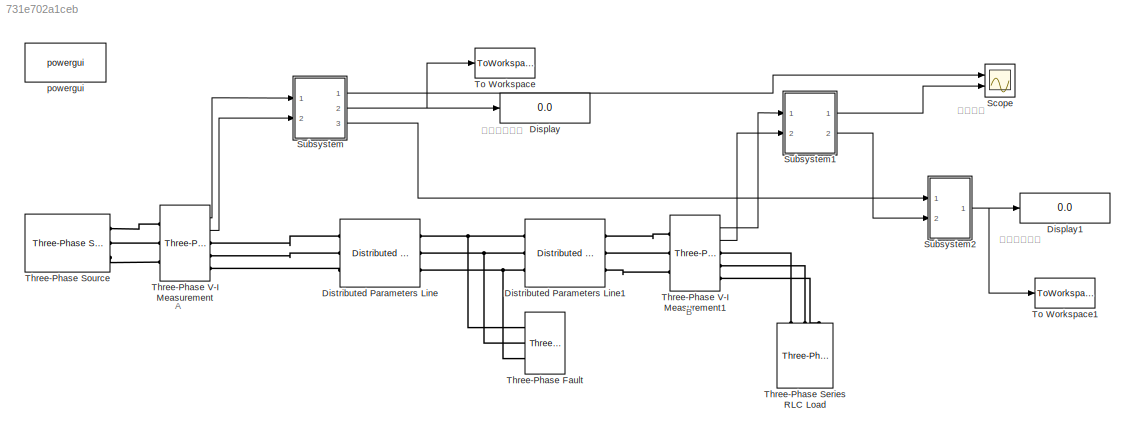
MODEL slx_731e702a1ceb
KIND model
CONFIG AbsTol = auto
CONFIG EnableMultiTasking = off
CONFIG FixedStep = auto
CONFIG MaxStep = auto
CONFIG MinStep = auto
CONFIG PreLoadFcn = l1=50;
CONFIG RelTol = 1e-3
CONFIG SampleTimeConstraint = Unconstrained
CONFIG Solver = ode23tb
CONFIG SolverName = ode23tb
CONFIG StartTime = 0.0
CONFIG StopTime = 0.015
BLOCK [Display] Display
  Decimation = 1
  Ports = [1]
BLOCK [Display] Display1
  Decimation = 1
  Ports = [1]
BLOCK [Reference] Distributed Parameters Line  REF=powerlib/Elements/Distributed Parameters Line
  Ports = [0, 0, 0, 0, 0, 3, 3]
  SourceBlock = powerlib/Elements/Distributed Parameters Line
  SourceProductBaseCode = PS
  SourceProductName = Simscape Power Systems
  SourceType = Distributed Parameters Line
BLOCK [Reference] Distributed Parameters Line1  REF=powerlib/Elements/Distributed Parameters Line
  Ports = [0, 0, 0, 0, 0, 3, 3]
  SourceBlock = powerlib/Elements/Distributed Parameters Line
  SourceProductBaseCode = PS
  SourceProductName = Simscape Power Systems
  SourceType = Distributed Parameters Line
BLOCK [Scope] Scope
  Floating = off
  NumInputPorts = 2
  Ports = [2]
  ScopeSpecificationString = Simulink.scopes.TimeScopeBlockCfg('CurrentConfiguration', extmgr.ConfigurationSet(extmgr.Configuration('Core','General UI',true),extmgr.Configuration('Core','Source UI',true),extmgr.Configuration('Sources','WiredSimulink',true),extmgr.Configuration('Visuals','Time Domain',true,'SerializedDisplays',{struct('MinYLimReal','-20383.08253','MaxYLimReal','103409.95199','YLabelReal','','MinYLimMag','   0....<+1407ch>
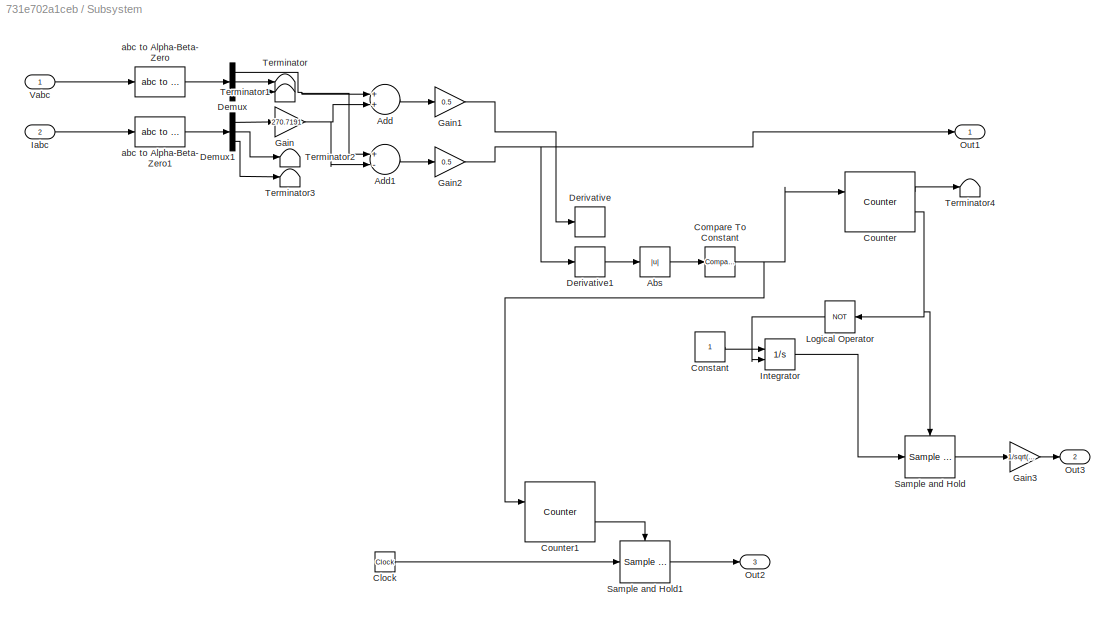
BLOCK [SubSystem] Subsystem
  Ports = [2, 3]
  RequestExecContextInheritance = off
BLOCK [Abs] Subsystem/Abs
  SaturateOnIntegerOverflow = off
BLOCK [Sum] Subsystem/Add
  InputSameDT = off
  OutDataTypeStr = Inherit: Inherit via internal rule
  Ports = [2, 1]
  SaturateOnIntegerOverflow = off
BLOCK [Sum] Subsystem/Add1
  InputSameDT = off
  Inputs = +-
  OutDataTypeStr = Inherit: Inherit via internal rule
  Ports = [2, 1]
  SaturateOnIntegerOverflow = off
BLOCK [Clock] Subsystem/Clock
BLOCK [Reference] Subsystem/Compare To Constant  REF=simulink/Logic and Bit
Operations/Compare
To Constant
  Ports = [1, 1]
  SourceBlock = simulink/Logic and Bit\nOperations/Compare\nTo Constant
  SourceProductBaseCode = SL
  SourceProductName = Simulink
  SourceType = Compare To Constant
BLOCK [Constant] Subsystem/Constant
BLOCK [Reference] Subsystem/Counter  REF=dspswit3/Counter
  Ports = [2, 2]
  SourceBlock = dspswit3/Counter
  SourceProductBaseCode = DS
  SourceProductName = DSP System Toolbox
  SourceType = Counter
BLOCK [Reference] Subsystem/Counter1  REF=dspswit3/Counter
  Ports = [2, 2]
  SourceBlock = dspswit3/Counter
  SourceProductBaseCode = DS
  SourceProductName = DSP System Toolbox
  SourceType = Counter
BLOCK [Demux] Subsystem/Demux
  DisplayOption = bar
  Outputs = 3
  Ports = [1, 3]
BLOCK [Demux] Subsystem/Demux1
  DisplayOption = bar
  Outputs = 3
  Ports = [1, 3]
BLOCK [Derivative] Subsystem/Derivative
BLOCK [Derivative] Subsystem/Derivative1
BLOCK [Gain] Subsystem/Gain
  Gain = 270.7191
  OutDataTypeStr = Inherit: Inherit via internal rule
  ParamDataTypeStr = Inherit: Inherit via internal rule
  SaturateOnIntegerOverflow = off
BLOCK [Gain] Subsystem/Gain1
  Gain = 0.5
  OutDataTypeStr = Inherit: Inherit via internal rule
  ParamDataTypeStr = Inherit: Inherit via internal rule
  SaturateOnIntegerOverflow = off
BLOCK [Gain] Subsystem/Gain2
  Gain = 0.5
  OutDataTypeStr = Inherit: Inherit via internal rule
  ParamDataTypeStr = Inherit: Inherit via internal rule
  SaturateOnIntegerOverflow = off
BLOCK [Gain] Subsystem/Gain3
  Gain = 1/sqrt(0.9337e-3*12.74e-9)/2
  OutDataTypeStr = Inherit: Inherit via internal rule
  ParamDataTypeStr = Inherit: Inherit via internal rule
  SaturateOnIntegerOverflow = off
BLOCK [Inport] Subsystem/Iabc
  IconDisplay = Port number
  Port = 2
BLOCK [Integrator] Subsystem/Integrator
  ExternalReset = level hold
  Ports = [2, 1]
BLOCK [Logic] Subsystem/Logical Operator
  AllPortsSameDT = off
  Operator = NOT
  OutDataTypeStr = boolean
  Ports = [1, 1]
BLOCK [Outport] Subsystem/Out1
  IconDisplay = Port number
BLOCK [Outport] Subsystem/Out2
  IconDisplay = Port number
  Port = 3
BLOCK [Outport] Subsystem/Out3
  IconDisplay = Port number
  Port = 2
BLOCK [Reference] Subsystem/Sample and Hold  REF=dspsigops/Sample
and Hold
  Ports = [1, 1, 0, 1]
  SourceBlock = dspsigops/Sample\nand Hold
  SourceProductBaseCode = DS
  SourceProductName = DSP System Toolbox
  SourceType = Sample and Hold
BLOCK [Reference] Subsystem/Sample and Hold1  REF=dspsigops/Sample
and Hold
  Ports = [1, 1, 0, 1]
  SourceBlock = dspsigops/Sample\nand Hold
  SourceProductBaseCode = DS
  SourceProductName = DSP System Toolbox
  SourceType = Sample and Hold
BLOCK [Terminator] Subsystem/Terminator
BLOCK [Terminator] Subsystem/Terminator1
BLOCK [Terminator] Subsystem/Terminator2
BLOCK [Terminator] Subsystem/Terminator3
BLOCK [Terminator] Subsystem/Terminator4
BLOCK [Inport] Subsystem/Vabc
  IconDisplay = Port number
BLOCK [Reference] Subsystem/abc to Alpha-Beta-Zero  REF=powerlib_meascontrol/Transformations/abc to
Alpha-Beta-Zero
  Ports = [1, 1]
  SourceBlock = powerlib_meascontrol/Transformations/abc to\nAlpha-Beta-Zero
  SourceProductBaseCode = PS
  SourceProductName = Simscape Power Systems
  SourceType = abc to Alpha-Beta-Zero Transformation
BLOCK [Reference] Subsystem/abc to Alpha-Beta-Zero1  REF=powerlib_meascontrol/Transformations/abc to
Alpha-Beta-Zero
  Ports = [1, 1]
  SourceBlock = powerlib_meascontrol/Transformations/abc to\nAlpha-Beta-Zero
  SourceProductBaseCode = PS
  SourceProductName = Simscape Power Systems
  SourceType = abc to Alpha-Beta-Zero Transformation
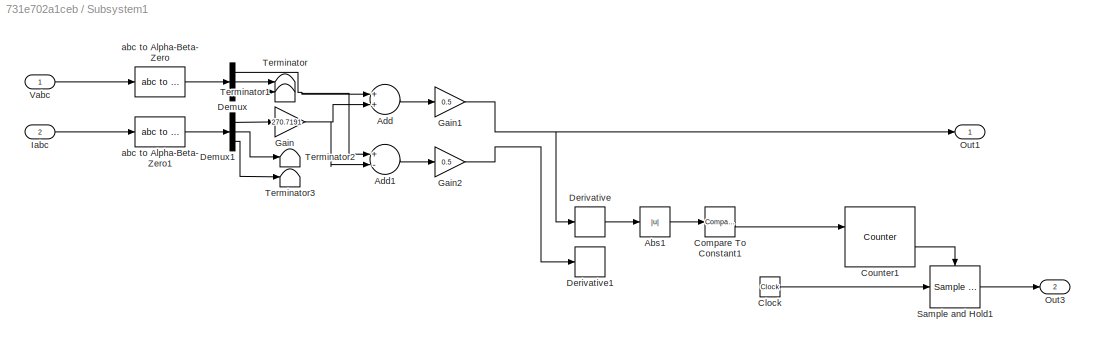
BLOCK [SubSystem] Subsystem1
  Ports = [2, 2]
  RequestExecContextInheritance = off
BLOCK [Abs] Subsystem1/Abs1
  SaturateOnIntegerOverflow = off
BLOCK [Sum] Subsystem1/Add
  InputSameDT = off
  OutDataTypeStr = Inherit: Inherit via internal rule
  Ports = [2, 1]
  SaturateOnIntegerOverflow = off
BLOCK [Sum] Subsystem1/Add1
  InputSameDT = off
  Inputs = +-
  OutDataTypeStr = Inherit: Inherit via internal rule
  Ports = [2, 1]
  SaturateOnIntegerOverflow = off
BLOCK [Clock] Subsystem1/Clock
BLOCK [Reference] Subsystem1/Compare To Constant1  REF=simulink/Logic and Bit
Operations/Compare
To Constant
  Ports = [1, 1]
  SourceBlock = simulink/Logic and Bit\nOperations/Compare\nTo Constant
  SourceProductBaseCode = SL
  SourceProductName = Simulink
  SourceType = Compare To Constant
BLOCK [Reference] Subsystem1/Counter1  REF=dspswit3/Counter
  Ports = [2, 2]
  SourceBlock = dspswit3/Counter
  SourceProductBaseCode = DS
  SourceProductName = DSP System Toolbox
  SourceType = Counter
BLOCK [Demux] Subsystem1/Demux
  DisplayOption = bar
  Outputs = 3
  Ports = [1, 3]
BLOCK [Demux] Subsystem1/Demux1
  DisplayOption = bar
  Outputs = 3
  Ports = [1, 3]
BLOCK [Derivative] Subsystem1/Derivative
BLOCK [Derivative] Subsystem1/Derivative1
BLOCK [Gain] Subsystem1/Gain
  Gain = 270.7191
  OutDataTypeStr = Inherit: Inherit via internal rule
  ParamDataTypeStr = Inherit: Inherit via internal rule
  SaturateOnIntegerOverflow = off
BLOCK [Gain] Subsystem1/Gain1
  Gain = 0.5
  OutDataTypeStr = Inherit: Inherit via internal rule
  ParamDataTypeStr = Inherit: Inherit via internal rule
  SaturateOnIntegerOverflow = off
BLOCK [Gain] Subsystem1/Gain2
  Gain = 0.5
  OutDataTypeStr = Inherit: Inherit via internal rule
  ParamDataTypeStr = Inherit: Inherit via internal rule
  SaturateOnIntegerOverflow = off
BLOCK [Inport] Subsystem1/Iabc
  IconDisplay = Port number
  Port = 2
BLOCK [Outport] Subsystem1/Out1
  IconDisplay = Port number
BLOCK [Outport] Subsystem1/Out3
  IconDisplay = Port number
  Port = 2
BLOCK [Reference] Subsystem1/Sample and Hold1  REF=dspsigops/Sample
and Hold
  Ports = [1, 1, 0, 1]
  SourceBlock = dspsigops/Sample\nand Hold
  SourceProductBaseCode = DS
  SourceProductName = DSP System Toolbox
  SourceType = Sample and Hold
BLOCK [Terminator] Subsystem1/Terminator
BLOCK [Terminator] Subsystem1/Terminator1
BLOCK [Terminator] Subsystem1/Terminator2
BLOCK [Terminator] Subsystem1/Terminator3
BLOCK [Inport] Subsystem1/Vabc
  IconDisplay = Port number
BLOCK [Reference] Subsystem1/abc to Alpha-Beta-Zero  REF=powerlib_meascontrol/Transformations/abc to
Alpha-Beta-Zero
  Ports = [1, 1]
  SourceBlock = powerlib_meascontrol/Transformations/abc to\nAlpha-Beta-Zero
  SourceProductBaseCode = PS
  SourceProductName = Simscape Power Systems
  SourceType = abc to Alpha-Beta-Zero Transformation
BLOCK [Reference] Subsystem1/abc to Alpha-Beta-Zero1  REF=powerlib_meascontrol/Transformations/abc to
Alpha-Beta-Zero
  Ports = [1, 1]
  SourceBlock = powerlib_meascontrol/Transformations/abc to\nAlpha-Beta-Zero
  SourceProductBaseCode = PS
  SourceProductName = Simscape Power Systems
  SourceType = abc to Alpha-Beta-Zero Transformation
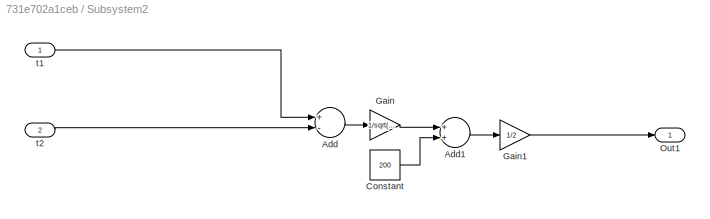
BLOCK [SubSystem] Subsystem2
  Ports = [2, 1]
  RequestExecContextInheritance = off
BLOCK [Sum] Subsystem2/Add
  InputSameDT = off
  Inputs = +-
  OutDataTypeStr = Inherit: Inherit via internal rule
  Ports = [2, 1]
  SaturateOnIntegerOverflow = off
BLOCK [Sum] Subsystem2/Add1
  InputSameDT = off
  OutDataTypeStr = Inherit: Inherit via internal rule
  Ports = [2, 1]
  SaturateOnIntegerOverflow = off
BLOCK [Constant] Subsystem2/Constant
  Value = 200
BLOCK [Gain] Subsystem2/Gain
  Gain = 1/sqrt(0.9337e-3*12.74e-9)
  OutDataTypeStr = Inherit: Inherit via internal rule
  ParamDataTypeStr = Inherit: Inherit via internal rule
  SaturateOnIntegerOverflow = off
BLOCK [Gain] Subsystem2/Gain1
  Gain = 1/2
  OutDataTypeStr = Inherit: Inherit via internal rule
  ParamDataTypeStr = Inherit: Inherit via internal rule
  SaturateOnIntegerOverflow = off
BLOCK [Outport] Subsystem2/Out1
  IconDisplay = Port number
BLOCK [Inport] Subsystem2/t1
  IconDisplay = Port number
BLOCK [Inport] Subsystem2/t2
  IconDisplay = Port number
  Port = 2
BLOCK [Reference] Three-Phase Fault  REF=powerlib/Elements/Three-Phase Fault
  Ports = [0, 0, 0, 0, 0, 3]
  SourceBlock = powerlib/Elements/Three-Phase Fault
  SourceProductBaseCode = PS
  SourceProductName = Simscape Power Systems
  SourceType = Three-Phase Fault
BLOCK [Reference] Three-Phase Series RLC Load  REF=powerlib/Elements/Three-Phase
Series RLC Load
  AttributesFormatString = \n
  Ports = [0, 0, 0, 0, 0, 3]
  SourceBlock = powerlib/Elements/Three-Phase\nSeries RLC Load
  SourceProductBaseCode = PS
  SourceProductName = Simscape Power Systems
  SourceType = Three-Phase Series RLC Load
BLOCK [Reference] Three-Phase Source  REF=powerlib/Electrical
Sources/Three-Phase Source
  Ports = [0, 0, 0, 0, 0, 0, 3]
  SourceBlock = powerlib/Electrical\nSources/Three-Phase Source
  SourceProductBaseCode = PS
  SourceProductName = Simscape Power Systems
  SourceType = Three-Phase Source
BLOCK [Reference] Three-Phase V-I Measurement  REF=powerlib/Measurements/Three-Phase
V-I Measurement
  Ports = [0, 2, 0, 0, 0, 3, 3]
  SourceBlock = powerlib/Measurements/Three-Phase\nV-I Measurement
  SourceProductBaseCode = PS
  SourceProductName = Simscape Power Systems
  SourceType = Three-Phase VI Measurement
BLOCK [Reference] Three-Phase V-I Measurement1  REF=powerlib/Measurements/Three-Phase
V-I Measurement
  Ports = [0, 2, 0, 0, 0, 3, 3]
  SourceBlock = powerlib/Measurements/Three-Phase\nV-I Measurement
  SourceProductBaseCode = PS
  SourceProductName = Simscape Power Systems
  SourceType = Three-Phase VI Measurement
BLOCK [ToWorkspace] To Workspace
  FixptAsFi = on
  MaxDataPoints = 1
  Ports = [1]
  SampleTime = -1
  Save2DSignal = 2-D array (concatenate along first dimension)
  VariableName = A
BLOCK [ToWorkspace] To Workspace1
  FixptAsFi = on
  MaxDataPoints = 1
  Ports = [1]
  SampleTime = -1
  Save2DSignal = 2-D array (concatenate along first dimension)
  VariableName = B
BLOCK [Reference] powergui  REF=powerlib/powergui
  Ports = []
  Priority = 1
  SourceBlock = powerlib/powergui
  SourceProductBaseCode = PS
  SourceProductName = Simscape Power Systems
  SourceType = PSB option menu block
ANNOTATION (root): A
ANNOTATION (root): B
ANNOTATION (root): 两端行波
ANNOTATION (root): 单端行波测距
ANNOTATION (root): 双端行波测距
LINE Subsystem/Abs:1 -> Subsystem/Compare To Constant:1
LINE Subsystem/Add1:1 -> Subsystem/Gain2:1
LINE Subsystem/Add:1 -> Subsystem/Gain1:1
LINE Subsystem/Clock:1 -> Subsystem/Sample and Hold1:1
NET Subsystem/Compare To Constant:1 -> Subsystem/Counter1:1, Subsystem/Counter:1
LINE Subsystem/Constant:1 -> Subsystem/Integrator:1
LINE Subsystem/Counter1:2 -> Subsystem/Sample and Hold1:trigger
LINE Subsystem/Counter:1 -> Subsystem/Terminator4:1
NET Subsystem/Counter:2 -> Subsystem/Logical Operator:1, Subsystem/Sample and Hold:trigger
LINE Subsystem/Demux1:1 -> Subsystem/Gain:1
LINE Subsystem/Demux1:2 -> Subsystem/Terminator2:1
LINE Subsystem/Demux1:3 -> Subsystem/Terminator3:1
NET Subsystem/Demux:1 -> Subsystem/Add1:1, Subsystem/Add:1
LINE Subsystem/Demux:2 -> Subsystem/Terminator:1
LINE Subsystem/Demux:3 -> Subsystem/Terminator1:1
LINE Subsystem/Derivative1:1 -> Subsystem/Abs:1
LINE Subsystem/Gain1:1 -> Subsystem/Derivative:1
NET Subsystem/Gain2:1 -> Subsystem/Derivative1:1, Subsystem/Out1:1
LINE Subsystem/Gain3:1 -> Subsystem/Out3:1
NET Subsystem/Gain:1 -> Subsystem/Add1:2, Subsystem/Add:2
LINE Subsystem/Iabc:1 -> Subsystem/abc to Alpha-Beta-Zero1:1
LINE Subsystem/Integrator:1 -> Subsystem/Sample and Hold:1
LINE Subsystem/Logical Operator:1 -> Subsystem/Integrator:2
LINE Subsystem/Sample and Hold1:1 -> Subsystem/Out2:1
LINE Subsystem/Sample and Hold:1 -> Subsystem/Gain3:1
LINE Subsystem/Vabc:1 -> Subsystem/abc to Alpha-Beta-Zero:1
LINE Subsystem/abc to Alpha-Beta-Zero1:1 -> Subsystem/Demux1:1
LINE Subsystem/abc to Alpha-Beta-Zero:1 -> Subsystem/Demux:1
LINE Subsystem1/Abs1:1 -> Subsystem1/Compare To Constant1:1
LINE Subsystem1/Add1:1 -> Subsystem1/Gain2:1
LINE Subsystem1/Add:1 -> Subsystem1/Gain1:1
LINE Subsystem1/Clock:1 -> Subsystem1/Sample and Hold1:1
LINE Subsystem1/Compare To Constant1:1 -> Subsystem1/Counter1:1
LINE Subsystem1/Counter1:2 -> Subsystem1/Sample and Hold1:trigger
LINE Subsystem1/Demux1:1 -> Subsystem1/Gain:1
LINE Subsystem1/Demux1:2 -> Subsystem1/Terminator2:1
LINE Subsystem1/Demux1:3 -> Subsystem1/Terminator3:1
NET Subsystem1/Demux:1 -> Subsystem1/Add1:1, Subsystem1/Add:1
LINE Subsystem1/Demux:2 -> Subsystem1/Terminator:1
LINE Subsystem1/Demux:3 -> Subsystem1/Terminator1:1
LINE Subsystem1/Derivative:1 -> Subsystem1/Abs1:1
NET Subsystem1/Gain1:1 -> Subsystem1/Derivative:1, Subsystem1/Out1:1
LINE Subsystem1/Gain2:1 -> Subsystem1/Derivative1:1
NET Subsystem1/Gain:1 -> Subsystem1/Add1:2, Subsystem1/Add:2
LINE Subsystem1/Iabc:1 -> Subsystem1/abc to Alpha-Beta-Zero1:1
LINE Subsystem1/Sample and Hold1:1 -> Subsystem1/Out3:1
LINE Subsystem1/Vabc:1 -> Subsystem1/abc to Alpha-Beta-Zero:1
LINE Subsystem1/abc to Alpha-Beta-Zero1:1 -> Subsystem1/Demux1:1
LINE Subsystem1/abc to Alpha-Beta-Zero:1 -> Subsystem1/Demux:1
LINE Subsystem1:1 -> Scope:2
LINE Subsystem1:2 -> Subsystem2:2
LINE Subsystem2/Add1:1 -> Subsystem2/Gain1:1
LINE Subsystem2/Add:1 -> Subsystem2/Gain:1
LINE Subsystem2/Constant:1 -> Subsystem2/Add1:2
LINE Subsystem2/Gain1:1 -> Subsystem2/Out1:1
LINE Subsystem2/Gain:1 -> Subsystem2/Add1:1
LINE Subsystem2/t1:1 -> Subsystem2/Add:1
LINE Subsystem2/t2:1 -> Subsystem2/Add:2
NET Subsystem2:1 -> Display1:1, To Workspace1:1
LINE Subsystem:1 -> Scope:1
NET Subsystem:2 -> Display:1, To Workspace:1
LINE Subsystem:3 -> Subsystem2:1
LINE Three-Phase V-I Measurement1:1 -> Subsystem1:1
LINE Three-Phase V-I Measurement1:2 -> Subsystem1:2
LINE Three-Phase V-I Measurement:1 -> Subsystem:1
LINE Three-Phase V-I Measurement:2 -> Subsystem:2
PNET net1: Distributed Parameters Line1:LConn1 -- Distributed Parameters Line:RConn1 -- Three-Phase Fault:LConn1
PNET net2: Distributed Parameters Line1:LConn2 -- Distributed Parameters Line:RConn2 -- Three-Phase Fault:LConn2
PNET net3: Distributed Parameters Line1:LConn3 -- Distributed Parameters Line:RConn3 -- Three-Phase Fault:LConn3
PLINE Distributed Parameters Line1:RConn1 -- Three-Phase V-I Measurement1:LConn1
PLINE Distributed Parameters Line1:RConn2 -- Three-Phase V-I Measurement1:LConn2
PLINE Distributed Parameters Line1:RConn3 -- Three-Phase V-I Measurement1:LConn3
PLINE Distributed Parameters Line:LConn1 -- Three-Phase V-I Measurement:RConn1
PLINE Distributed Parameters Line:LConn2 -- Three-Phase V-I Measurement:RConn2
PLINE Distributed Parameters Line:LConn3 -- Three-Phase V-I Measurement:RConn3
PLINE Three-Phase Series RLC Load:LConn1 -- Three-Phase V-I Measurement1:RConn1
PLINE Three-Phase Series RLC Load:LConn2 -- Three-Phase V-I Measurement1:RConn2
PLINE Three-Phase Series RLC Load:LConn3 -- Three-Phase V-I Measurement1:RConn3
PLINE Three-Phase Source:RConn1 -- Three-Phase V-I Measurement:LConn1
PLINE Three-Phase Source:RConn2 -- Three-Phase V-I Measurement:LConn2
PLINE Three-Phase Source:RConn3 -- Three-Phase V-I Measurement:LConn3
note: NET lines group one-source signal fan-out (src -> all destinations, sorted); 1:1 wires keep LINE; PNET lines group multi-terminal physical nets as a canonical sorted terminal list (undirected conserving connections); 2-terminal nets keep the pairwise PLINE form
